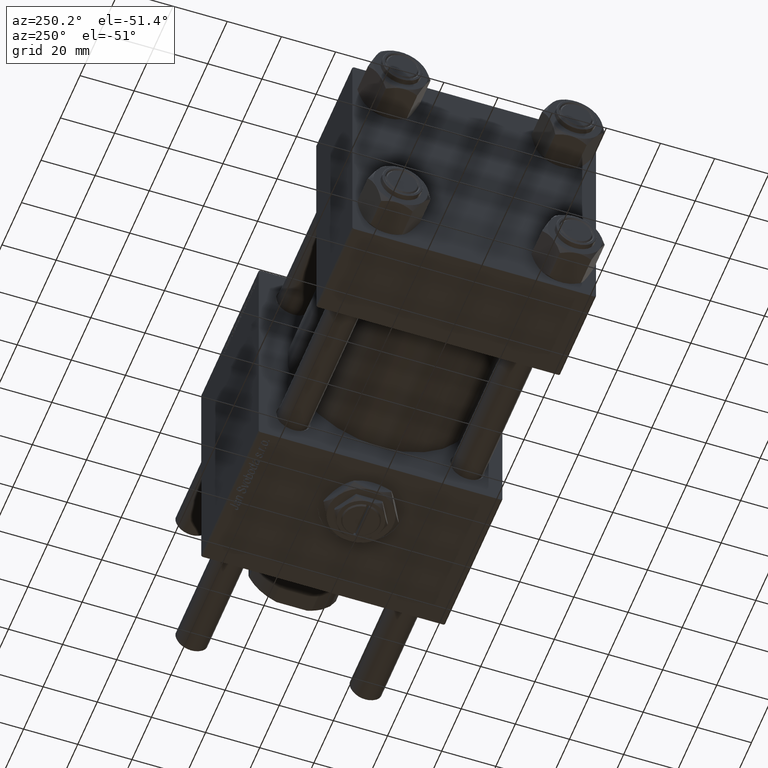
[diagram: clean part render]
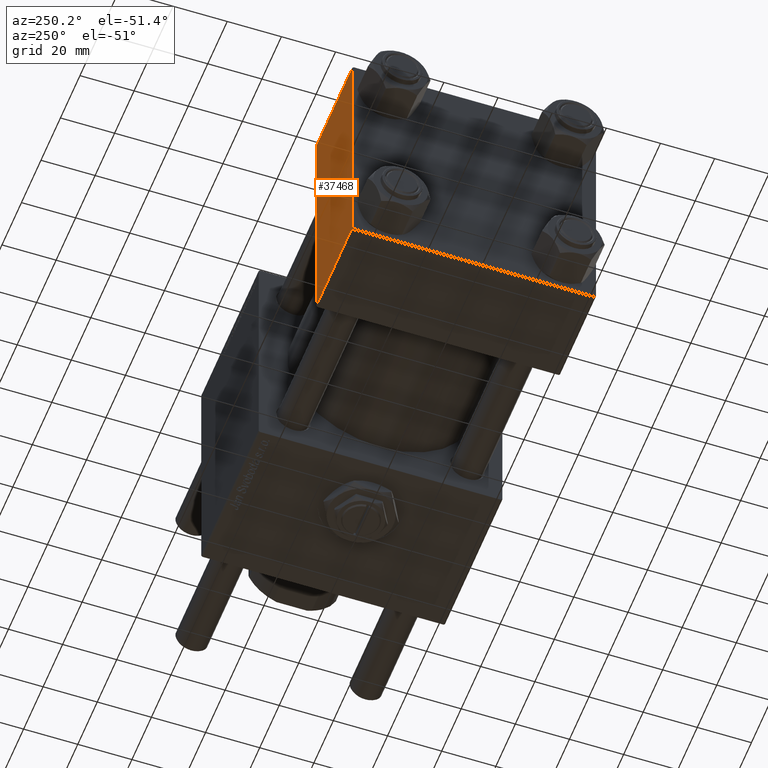
[diagram: same view with one face highlighted and labeled with its STEP entity id]
A machine part, auxiliary view. The second image highlights one B-rep face of the part: STEP entity #37468.
In plain terms, the highlighted planar face has unit normal (0, 1, 0).
Its self-contained STEP definition (entity closure, byte-faithful):
#637 = VECTOR ( 'NONE', #31262, 1000.000000000000000 ) ;
#833 = EDGE_CURVE ( 'NONE', #40698, #38159, #11512, .T. ) ;
#2051 = DIRECTION ( 'NONE',  ( 1.000000000000000000, 0.000000000000000000, 0.000000000000000000 ) ) ;
#2218 = DIRECTION ( 'NONE',  ( -0.000000000000000000, 1.000000000000000000, 0.000000000000000000 ) ) ;
#3548 = DIRECTION ( 'NONE',  ( 0.000000000000000000, 0.000000000000000000, -1.000000000000000000 ) ) ;
#6764 = EDGE_LOOP ( 'NONE', ( #27505, #12075, #19027, #49465 ) ) ;
#6816 = CARTESIAN_POINT ( 'NONE',  ( 0.000000000000000000, 44.99999999999998579, 45.00000000000001421 ) ) ;
#7360 = DIRECTION ( 'NONE',  ( 0.000000000000000000, 0.000000000000000000, -1.000000000000000000 ) ) ;
#11512 = LINE ( 'NONE', #52005, #17298 ) ;
#12075 = ORIENTED_EDGE ( 'NONE', *, *, #41074, .T. ) ;
#15632 = LINE ( 'NONE', #33638, #20140 ) ;
#15870 = VERTEX_POINT ( 'NONE', #29009 ) ;
#17298 = VECTOR ( 'NONE', #2051, 1000.000000000000000 ) ;
#19027 = ORIENTED_EDGE ( 'NONE', *, *, #24876, .F. ) ;
#20140 = VECTOR ( 'NONE', #7360, 1000.000000000000000 ) ;
#21500 = CARTESIAN_POINT ( 'NONE',  ( 37.00000000000000000, 44.99999999999998579, 44.50000000000001421 ) ) ;
#23994 = AXIS2_PLACEMENT_3D ( 'NONE', #32654, #2218, #51284 ) ;
#24876 = EDGE_CURVE ( 'NONE', #40698, #15870, #44032, .T. ) ;
#27505 = ORIENTED_EDGE ( 'NONE', *, *, #50760, .T. ) ;
#29009 = CARTESIAN_POINT ( 'NONE',  ( 0.000000000000000000, 44.99999999999998579, -44.49999999999995737 ) ) ;
#31262 = DIRECTION ( 'NONE',  ( -1.000000000000000000, 0.000000000000000000, 0.000000000000000000 ) ) ;
#32654 = CARTESIAN_POINT ( 'NONE',  ( 37.00000000000000000, 44.99999999999998579, 45.00000000000001421 ) ) ;
#33638 = CARTESIAN_POINT ( 'NONE',  ( 37.00000000000000000, 44.99999999999998579, 45.00000000000001421 ) ) ;
#35424 = LINE ( 'NONE', #53183, #637 ) ;
#37468 = ADVANCED_FACE ( 'NONE', ( #56024 ), #51872, .T. ) ;
#38159 = VERTEX_POINT ( 'NONE', #21500 ) ;
#38852 = VECTOR ( 'NONE', #3548, 1000.000000000000000 ) ;
#40698 = VERTEX_POINT ( 'NONE', #44148 ) ;
#41074 = EDGE_CURVE ( 'NONE', #41732, #15870, #35424, .T. ) ;
#41732 = VERTEX_POINT ( 'NONE', #47354 ) ;
#44032 = LINE ( 'NONE', #6816, #38852 ) ;
#44148 = CARTESIAN_POINT ( 'NONE',  ( 0.000000000000000000, 44.99999999999998579, 44.50000000000001421 ) ) ;
#47354 = CARTESIAN_POINT ( 'NONE',  ( 37.00000000000000000, 44.99999999999998579, -44.49999999999995737 ) ) ;
#49465 = ORIENTED_EDGE ( 'NONE', *, *, #833, .T. ) ;
#50760 = EDGE_CURVE ( 'NONE', #38159, #41732, #15632, .T. ) ;
#51284 = DIRECTION ( 'NONE',  ( 0.000000000000000000, -0.000000000000000000, 1.000000000000000000 ) ) ;
#51872 = PLANE ( 'NONE',  #23994 ) ;
#52005 = CARTESIAN_POINT ( 'NONE',  ( 37.00000000000000000, 44.99999999999998579, 44.50000000000001421 ) ) ;
#53183 = CARTESIAN_POINT ( 'NONE',  ( 37.00000000000000000, 44.99999999999998579, -44.49999999999998579 ) ) ;
#56024 = FACE_OUTER_BOUND ( 'NONE', #6764, .T. ) ;